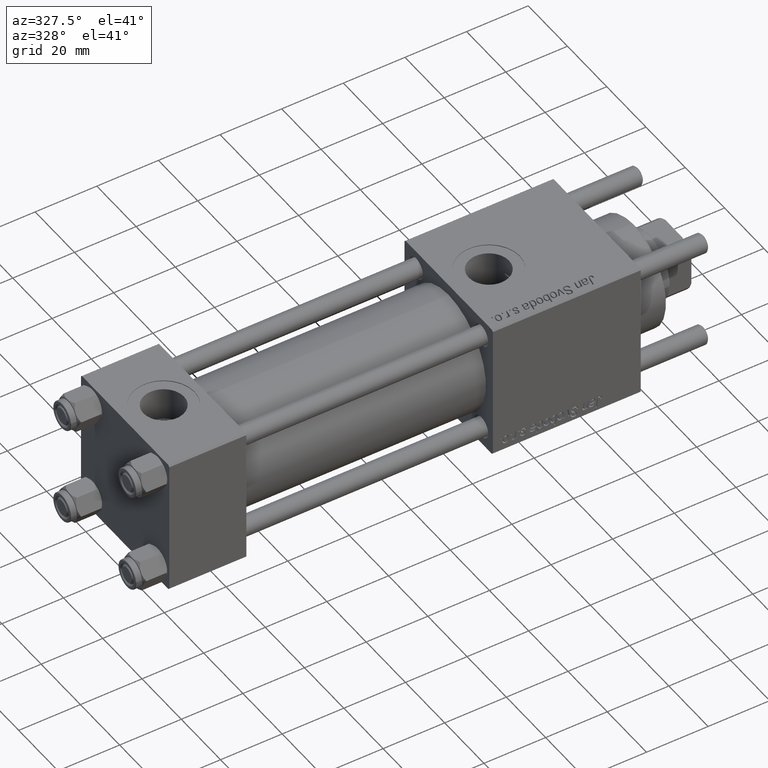
[diagram: clean part render]
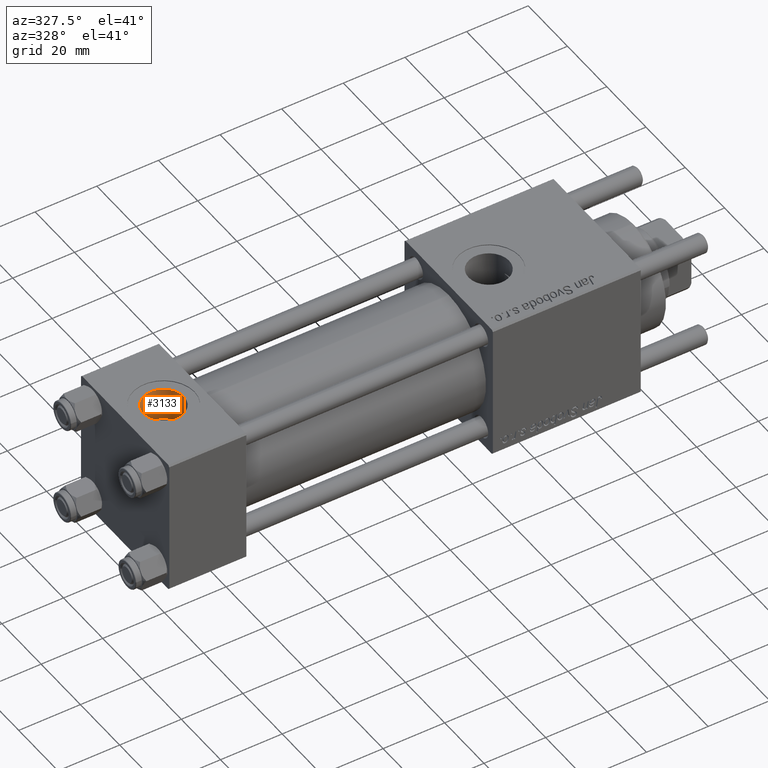
[diagram: same view with one face highlighted and labeled with its STEP entity id]
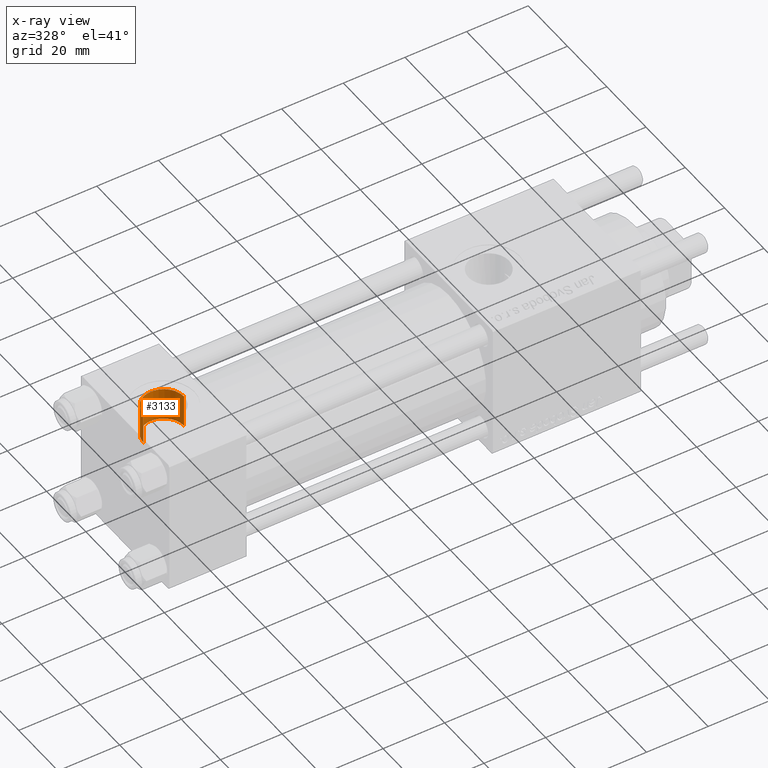
[diagram: x-ray of the same camera — body ghosted, the highlighted face saturated]
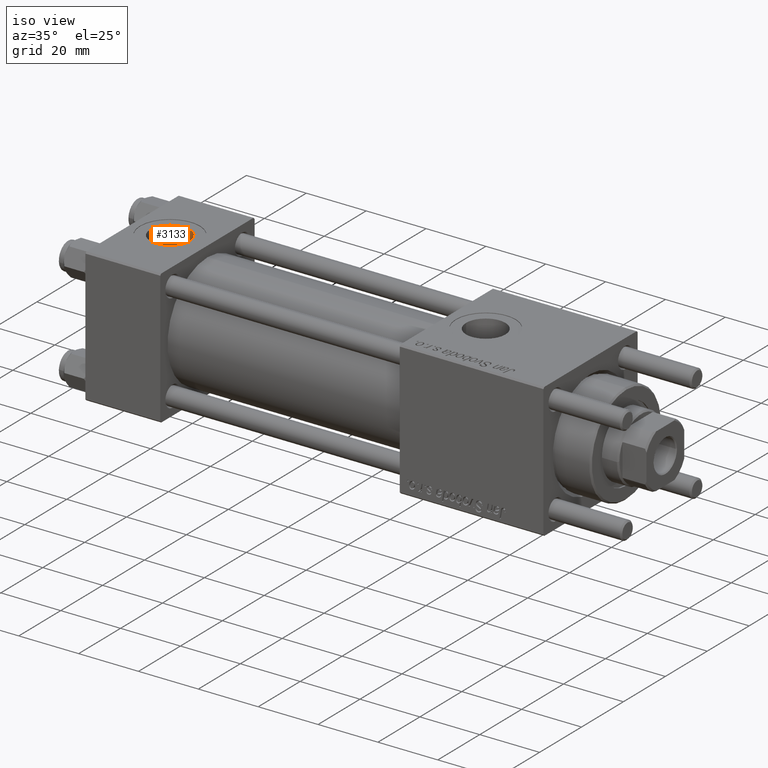
[diagram: same view with one face highlighted and labeled with its STEP entity id]
A machine part, auxiliary view. The second image highlights one B-rep face of the part: STEP entity #3133.
The next image is the same camera in x-ray: the body ghosted, the highlighted face saturated — about 0% of this face is hidden behind the body in this view.
A second angle (iso view) of the same face is appended — the face is thin or edge-on in the first view.
In plain terms, the highlighted cylindrical surface (edge-blend (fillet) strip) has radius 6.58 mm, axis along (0, 0, 1).
Its self-contained STEP definition (entity closure, byte-faithful):
#435 = VERTEX_POINT ( 'NONE', #35873 ) ;
#1652 = CIRCLE ( 'NONE', #43481, 6.579999999999999183 ) ;
#1765 = CARTESIAN_POINT ( 'NONE',  ( 19.07999999999999829, -1.734723475976807094E-15, 22.30000000000000071 ) ) ;
#3133 = ADVANCED_FACE ( 'NONE', ( #12746 ), #49052, .F. ) ;
#3384 = CIRCLE ( 'NONE', #49009, 6.579999999999999183 ) ;
#5259 = EDGE_CURVE ( 'NONE', #14325, #435, #21651, .T. ) ;
#7382 = EDGE_LOOP ( 'NONE', ( #43764, #23558, #11424, #47243 ) ) ;
#8277 = CARTESIAN_POINT ( 'NONE',  ( 12.50000000000000000, -1.734723475976807094E-15, 11.69999999999999929 ) ) ;
#9223 = DIRECTION ( 'NONE',  ( 1.000000000000000000, 0.000000000000000000, 0.000000000000000000 ) ) ;
#11023 = EDGE_CURVE ( 'NONE', #54444, #29373, #37480, .T. ) ;
#11424 = ORIENTED_EDGE ( 'NONE', *, *, #11023, .T. ) ;
#12746 = FACE_OUTER_BOUND ( 'NONE', #7382, .T. ) ;
#14325 = VERTEX_POINT ( 'NONE', #54896 ) ;
#19033 = CARTESIAN_POINT ( 'NONE',  ( 19.07999999999999829, -1.734723475976807094E-15, 11.69999999999999929 ) ) ;
#19592 = DIRECTION ( 'NONE',  ( -0.000000000000000000, -0.000000000000000000, 1.000000000000000000 ) ) ;
#21651 = LINE ( 'NONE', #29402, #40571 ) ;
#22257 = DIRECTION ( 'NONE',  ( -0.000000000000000000, -0.000000000000000000, 1.000000000000000000 ) ) ;
#23558 = ORIENTED_EDGE ( 'NONE', *, *, #58131, .T. ) ;
#29373 = VERTEX_POINT ( 'NONE', #1765 ) ;
#29402 = CARTESIAN_POINT ( 'NONE',  ( 5.920000000000002593, -9.289058821378490386E-16, 11.69999999999999929 ) ) ;
#31550 = CARTESIAN_POINT ( 'NONE',  ( 12.50000000000000000, -1.734723475976807094E-15, 11.66598726114649409 ) ) ;
#32064 = AXIS2_PLACEMENT_3D ( 'NONE', #8277, #22257, #40425 ) ;
#33164 = CARTESIAN_POINT ( 'NONE',  ( 12.50000000000000000, -1.734723475976807094E-15, 22.30000000000000071 ) ) ;
#35873 = CARTESIAN_POINT ( 'NONE',  ( 5.920000000000002593, -9.289058821378490386E-16, 22.30000000000000071 ) ) ;
#37480 = LINE ( 'NONE', #19033, #42635 ) ;
#40425 = DIRECTION ( 'NONE',  ( 1.000000000000000000, 0.000000000000000000, 0.000000000000000000 ) ) ;
#40571 = VECTOR ( 'NONE', #47565, 1000.000000000000000 ) ;
#42635 = VECTOR ( 'NONE', #19592, 1000.000000000000000 ) ;
#43481 = AXIS2_PLACEMENT_3D ( 'NONE', #31550, #58037, #9223 ) ;
#43764 = ORIENTED_EDGE ( 'NONE', *, *, #5259, .F. ) ;
#47176 = EDGE_CURVE ( 'NONE', #29373, #435, #3384, .T. ) ;
#47243 = ORIENTED_EDGE ( 'NONE', *, *, #47176, .T. ) ;
#47565 = DIRECTION ( 'NONE',  ( -0.000000000000000000, -0.000000000000000000, 1.000000000000000000 ) ) ;
#49009 = AXIS2_PLACEMENT_3D ( 'NONE', #33164, #55770, #51313 ) ;
#49052 = CYLINDRICAL_SURFACE ( 'NONE', #32064, 6.579999999999999183 ) ;
#51313 = DIRECTION ( 'NONE',  ( 1.000000000000000000, 0.000000000000000000, 0.000000000000000000 ) ) ;
#54444 = VERTEX_POINT ( 'NONE', #56733 ) ;
#54896 = CARTESIAN_POINT ( 'NONE',  ( 5.920000000000002593, -9.289058821378490386E-16, 11.66598726114649409 ) ) ;
#55770 = DIRECTION ( 'NONE',  ( 0.000000000000000000, 0.000000000000000000, 1.000000000000000000 ) ) ;
#56733 = CARTESIAN_POINT ( 'NONE',  ( 19.07999999999999829, -1.734723475976807094E-15, 11.66598726114649409 ) ) ;
#58037 = DIRECTION ( 'NONE',  ( -0.000000000000000000, -0.000000000000000000, -1.000000000000000000 ) ) ;
#58131 = EDGE_CURVE ( 'NONE', #14325, #54444, #1652, .T. ) ;